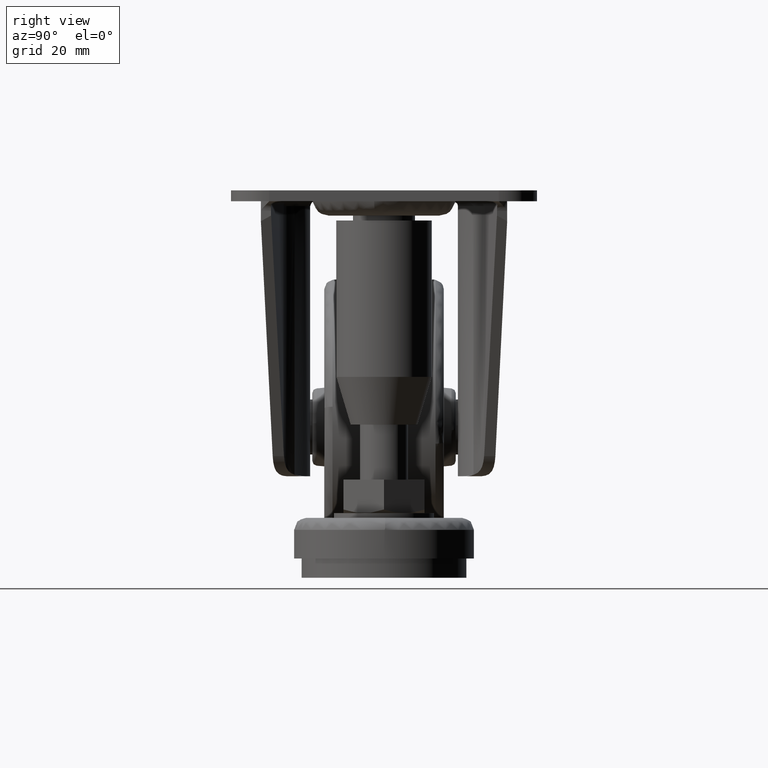
[diagram: clean part render]
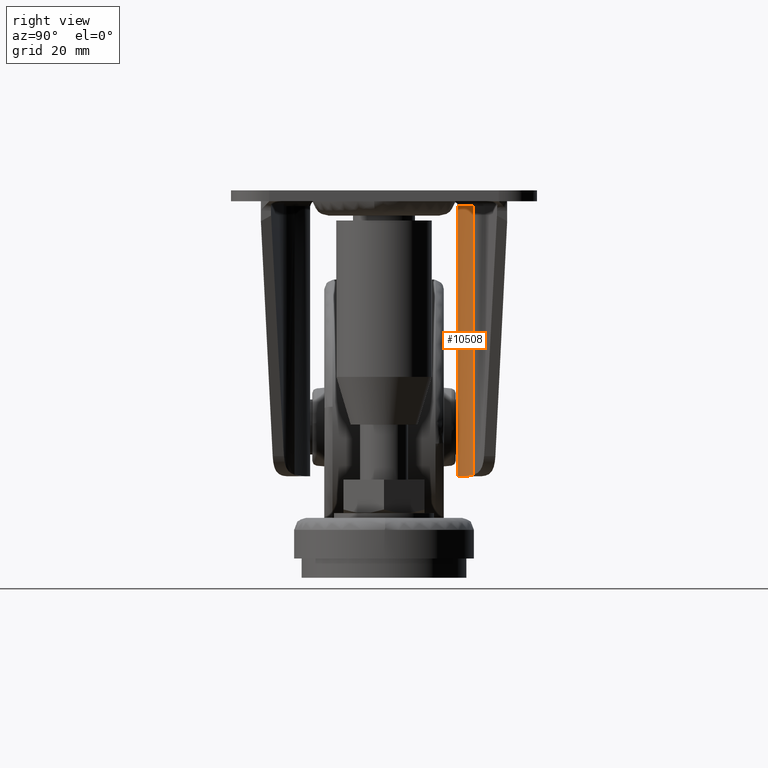
[diagram: same view with one face highlighted and labeled with its STEP entity id]
A machine part, right view. The second image highlights one B-rep face of the part: STEP entity #10508.
In plain terms, the highlighted face is a freeform B-spline surface patch.
Its self-contained STEP definition (entity closure, byte-faithful):
#8702=CARTESIAN_POINT('',(7.0,15.449999999999999,46.200004000000000));
#8703=VERTEX_POINT('',#8702);
#8704=CARTESIAN_POINT('',(7.0,15.449999999999999,-10.299995999999860));
#8705=VERTEX_POINT('',#8704);
#8706=CARTESIAN_POINT('',(7.0,15.449999999999999,46.200004000000000));
#8707=CARTESIAN_POINT('',(7.0,15.449999999999999,-10.299995999999860));
#8708=QUASI_UNIFORM_CURVE('',1,(#8706,#8707),.UNSPECIFIED.,.F.,.U.);
#8709=EDGE_CURVE('',#8703,#8705,#8708,.T.);
#8872=CARTESIAN_POINT('',(14.521268505481920,18.712918213602649,46.200004000000000));
#8873=VERTEX_POINT('',#8872);
#8874=CARTESIAN_POINT('',(14.521268505481940,18.712918213602642,46.200004000000000));
#8875=CARTESIAN_POINT('',(11.468402846622439,15.450000000000001,46.200004000000000));
#8876=CARTESIAN_POINT('',(7.0,15.449999999999999,46.200004000000000));
#8884=(BOUNDED_CURVE()B_SPLINE_CURVE(2,(#8874,#8875,#8876),.UNSPECIFIED.,.F.,.U.)CURVE()GEOMETRIC_REPRESENTATION_ITEM()QUASI_UNIFORM_CURVE()RATIONAL_B_SPLINE_CURVE((1.0,0.917390817460605,1.0))REPRESENTATION_ITEM(''));
#8885=EDGE_CURVE('',#8873,#8703,#8884,.T.);
#9434=CARTESIAN_POINT('',(14.521269987830500,18.712916826681852,-9.975776909181930));
#9435=VERTEX_POINT('',#9434);
#9436=CARTESIAN_POINT('',(14.521268505481920,18.712918213602649,46.200004000000000));
#9437=CARTESIAN_POINT('',(14.521269987830500,18.712916826681852,-9.975776909181930));
#9438=QUASI_UNIFORM_CURVE('',1,(#9436,#9437),.UNSPECIFIED.,.F.,.U.);
#9439=EDGE_CURVE('',#8873,#9435,#9438,.T.);
#10449=CARTESIAN_POINT('',(12.575631000000101,17.089610923761150,-10.299995999999860));
#10450=VERTEX_POINT('',#10449);
#10456=CARTESIAN_POINT('',(12.575631000000120,17.089610923761121,-10.299995999999860));
#10457=CARTESIAN_POINT('',(10.028893503666081,15.449999999999998,-10.299995999999860));
#10458=CARTESIAN_POINT('',(7.0,15.449999999999999,-10.299995999999860));
#10466=(BOUNDED_CURVE()B_SPLINE_CURVE(2,(#10456,#10457,#10458),.UNSPECIFIED.,.F.,.U.)CURVE()GEOMETRIC_REPRESENTATION_ITEM()QUASI_UNIFORM_CURVE()RATIONAL_B_SPLINE_CURVE((1.0,0.959378567985873,1.0))REPRESENTATION_ITEM(''));
#10467=EDGE_CURVE('',#10450,#8705,#10466,.T.);
#10479=CARTESIAN_POINT('',(6.730377432428892,15.453529552751760,47.612504000000001));
#10480=CARTESIAN_POINT('',(6.730377432428892,15.453529552751760,-11.747808499999859));
#10481=CARTESIAN_POINT('',(11.606066819942326,15.325855132854604,47.612503999999994));
#10482=CARTESIAN_POINT('',(11.606066819942326,15.325855132854604,-11.747808499999850));
#10483=CARTESIAN_POINT('',(14.794456516056190,19.016765441534858,47.612504000000008));
#10484=CARTESIAN_POINT('',(14.794456516056190,19.016765441534858,-11.747808499999861));
#10492=(BOUNDED_SURFACE()B_SPLINE_SURFACE(1,2,((#10479,#10481,#10483),(#10480,#10482,#10484)),.UNSPECIFIED.,.F.,.F.,.U.)B_SPLINE_SURFACE_WITH_KNOTS((2,2),(3,3),(0.0,59.360312499999857),(0.0,9.261764663723914),.UNSPECIFIED.)GEOMETRIC_REPRESENTATION_ITEM()RATIONAL_B_SPLINE_SURFACE(((1.0,0.903220845780248,0.998737170307852),(1.0,0.903220845780248,0.998737170307852)))REPRESENTATION_ITEM('')SURFACE());
#10493=ORIENTED_EDGE('',*,*,#9439,.F.);
#10494=ORIENTED_EDGE('',*,*,#8885,.T.);
#10495=ORIENTED_EDGE('',*,*,#8709,.T.);
#10496=ORIENTED_EDGE('',*,*,#10467,.F.);
#10497=CARTESIAN_POINT('',(12.575631000000101,17.089610923761150,-10.299995999999860));
#10498=CARTESIAN_POINT('',(12.939295844902849,17.323741005633511,-10.299995915309220));
#10499=CARTESIAN_POINT('',(13.281937943867071,17.576545275134691,-10.267336696866270));
#10500=CARTESIAN_POINT('',(13.929523925789571,18.117843117690761,-10.154481329198839));
#10501=CARTESIAN_POINT('',(14.234431990544911,18.406343423699131,-10.074103945493199));
#10502=CARTESIAN_POINT('',(14.521269987830500,18.712916826681852,-9.975776909181930));
#10503=B_SPLINE_CURVE_WITH_KNOTS('',3,(#10497,#10498,#10499,#10500,#10501,#10502),.UNSPECIFIED.,.F.,.U.,(4,2,4),(0.0,0.500000000000000,1.0),.UNSPECIFIED.);
#10504=EDGE_CURVE('',#10450,#9435,#10503,.T.);
#10505=ORIENTED_EDGE('',*,*,#10504,.T.);
#10506=EDGE_LOOP('',(#10493,#10494,#10495,#10496,#10505));
#10507=FACE_OUTER_BOUND('',#10506,.T.);
#10508=ADVANCED_FACE('',(#10507),#10492,.T.);